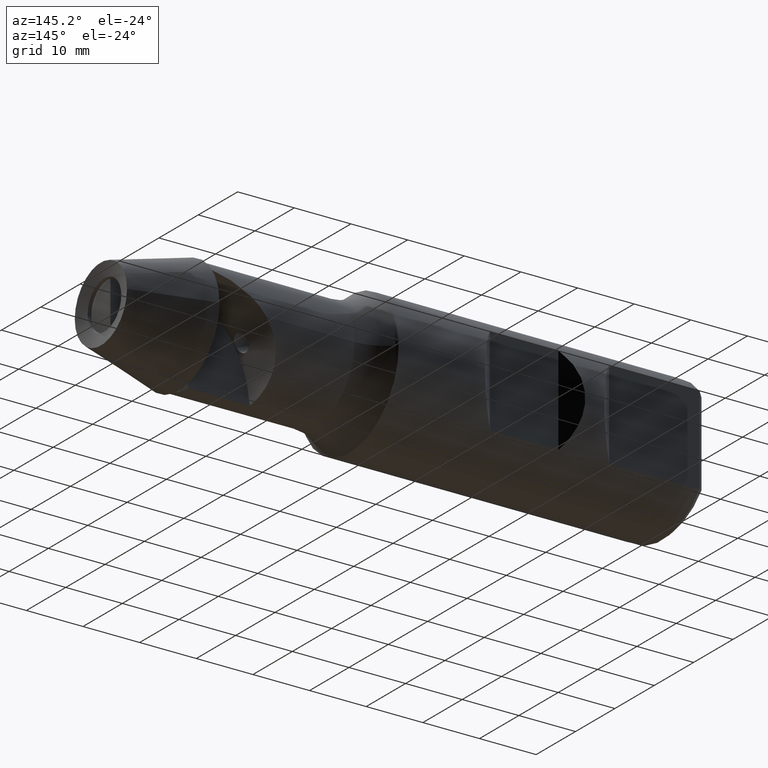
[diagram: clean part render]
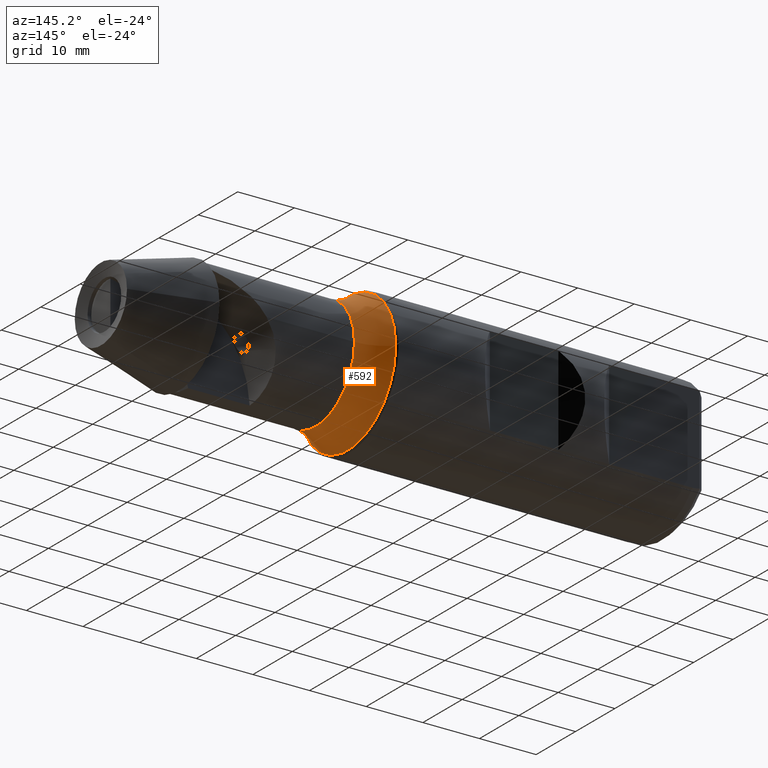
[diagram: same view with one face highlighted and labeled with its STEP entity id]
A machine part, auxiliary view. The second image highlights one B-rep face of the part: STEP entity #592.
In plain terms, the highlighted toroidal blend (fillet) surface has major radius 17.85 mm and minor (blend) radius 8 mm.
Its self-contained STEP definition (entity closure, byte-faithful):
#32 = CARTESIAN_POINT ( 'NONE',  ( -42.43600000000000000, -6.363466099705885800E-015, 0.0000000000000000000 ) ) ;
#127 = DIRECTION ( 'NONE',  ( 0.0000000000000000000, 1.000000000000000000, 0.0000000000000000000 ) ) ;
#229 = EDGE_LOOP ( 'NONE', ( #726 ) ) ;
#235 = CIRCLE ( 'NONE', #1093, 12.19112535566649700 ) ;
#263 = VERTEX_POINT ( 'NONE', #459 ) ;
#315 = VERTEX_POINT ( 'NONE', #1344 ) ;
#322 = FACE_OUTER_BOUND ( 'NONE', #229, .T. ) ;
#386 = EDGE_LOOP ( 'NONE', ( #1323 ) ) ;
#425 = EDGE_CURVE ( 'NONE', #315, #315, #235, .T. ) ;
#459 = CARTESIAN_POINT ( 'NONE',  ( -42.43600000000000000, 9.849999999999990800, 0.0000000000000000000 ) ) ;
#482 = FACE_OUTER_BOUND ( 'NONE', #386, .T. ) ;
#528 = CARTESIAN_POINT ( 'NONE',  ( -48.09083313279176500, -7.055063620854371100E-015, 0.0000000000000000000 ) ) ;
#560 = DIRECTION ( 'NONE',  ( 1.000000000000000000, 1.223020211043870700E-016, -0.0000000000000000000 ) ) ;
#592 = ADVANCED_FACE ( 'NONE', ( #322, #482 ), #962, .F. ) ;
#632 = DIRECTION ( 'NONE',  ( 0.0000000000000000000, 1.000000000000000000, 0.0000000000000000000 ) ) ;
#667 = DIRECTION ( 'NONE',  ( -1.223020211043870700E-016, 1.000000000000000000, 0.0000000000000000000 ) ) ;
#673 = CIRCLE ( 'NONE', #1265, 9.849999999999997900 ) ;
#688 = AXIS2_PLACEMENT_3D ( 'NONE', #1251, #560, #667 ) ;
#722 = DIRECTION ( 'NONE',  ( 1.000000000000000000, 1.223020211043870700E-016, -0.0000000000000000000 ) ) ;
#726 = ORIENTED_EDGE ( 'NONE', *, *, #425, .T. ) ;
#962 = TOROIDAL_SURFACE ( 'NONE', #688, 17.84999999999999400, 8.000000000000000000 ) ;
#1080 = EDGE_CURVE ( 'NONE', #263, #263, #673, .T. ) ;
#1093 = AXIS2_PLACEMENT_3D ( 'NONE', #528, #1322, #632 ) ;
#1251 = CARTESIAN_POINT ( 'NONE',  ( -42.43600000000000000, -6.938893903907228400E-015, 0.0000000000000000000 ) ) ;
#1265 = AXIS2_PLACEMENT_3D ( 'NONE', #32, #722, #127 ) ;
#1322 = DIRECTION ( 'NONE',  ( 1.000000000000000000, 1.223020211043870700E-016, -0.0000000000000000000 ) ) ;
#1323 = ORIENTED_EDGE ( 'NONE', *, *, #1080, .F. ) ;
#1344 = CARTESIAN_POINT ( 'NONE',  ( -48.09083313279176500, 12.19112535566649000, 0.0000000000000000000 ) ) ;